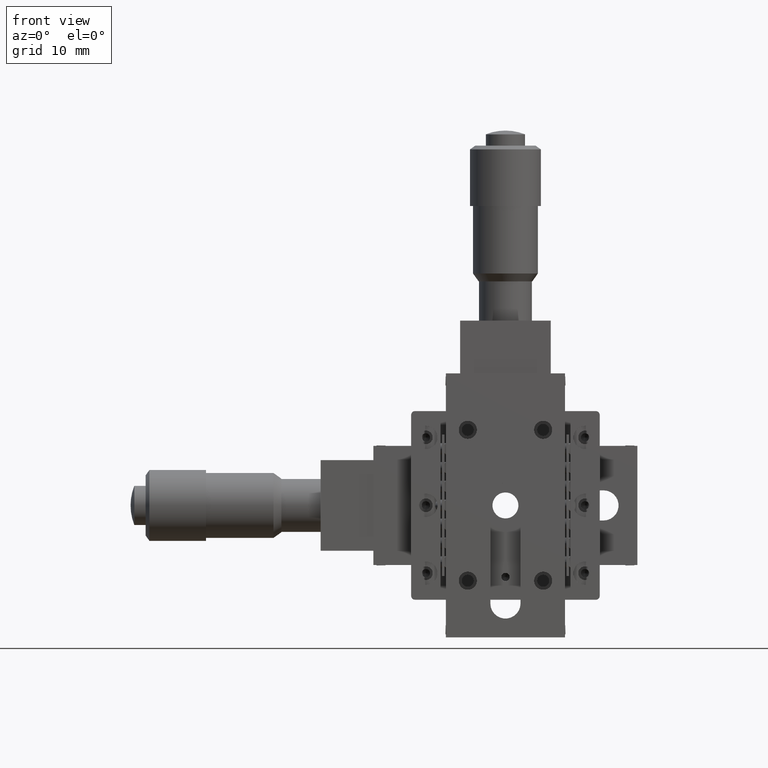
[diagram: clean part render]
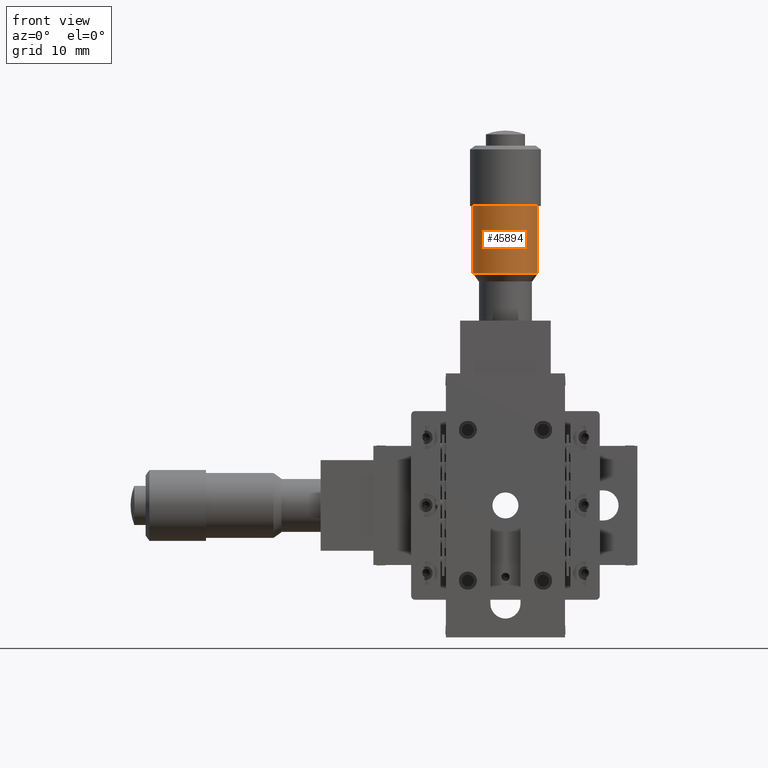
[diagram: same view with one face highlighted and labeled with its STEP entity id]
A machine part, front view. The second image highlights one B-rep face of the part: STEP entity #45894.
In plain terms, the highlighted cylindrical surface (edge-blend (fillet) strip) has radius 4.3 mm, axis along (0, 0, 1).
Its self-contained STEP definition (entity closure, byte-faithful):
#747 = CARTESIAN_POINT ( 'NONE',  ( 3.137747072165624400E-014, 6.199999999999917600, 83.73849299920763700 ) ) ;
#1288 = CARTESIAN_POINT ( 'NONE',  ( -4.299330265894087500, 6.275930369695276800, 36.34243226950731300 ) ) ;
#1525 = CARTESIAN_POINT ( 'NONE',  ( -4.298724953313792300, 6.304987535272838200, 36.53535278307617100 ) ) ;
#1660 = DIRECTION ( 'NONE',  ( 1.110223024626044000E-016, 1.762506864451433100E-016, 1.000000000000000000 ) ) ;
#2307 = EDGE_CURVE ( 'NONE', #20906, #18374, #33225, .T. ) ;
#2344 = DIRECTION ( 'NONE',  ( 0.9995725314435851500, -0.02923618277858836300, 0.0000000000000000000 ) ) ;
#3737 = VECTOR ( 'NONE', #34727, 1000.000000000000000 ) ;
#5403 = FACE_OUTER_BOUND ( 'NONE', #37456, .T. ) ;
#5784 = CARTESIAN_POINT ( 'NONE',  ( 4.296902805728514400, 6.036824394829378300, 37.23787676788948900 ) ) ;
#6308 = CARTESIAN_POINT ( 'NONE',  ( -4.299194531600719800, 6.283372684705188500, 36.40825967323661400 ) ) ;
#6877 = ORIENTED_EDGE ( 'NONE', *, *, #48872, .T. ) ;
#7495 = CARTESIAN_POINT ( 'NONE',  ( -4.299421812216580800, 6.270537722050214300, 35.93747706129513400 ) ) ;
#7845 = CARTESIAN_POINT ( 'NONE',  ( 4.298161885207447200, 6.074284414051967400, 30.74746992999999400 ) ) ;
#8504 = DIRECTION ( 'NONE',  ( 1.110223024626044000E-016, 1.762506864451433100E-016, 1.000000000000000000 ) ) ;
#8541 = VECTOR ( 'NONE', #1660, 1000.000000000000000 ) ;
#9214 = ORIENTED_EDGE ( 'NONE', *, *, #27364, .T. ) ;
#9296 = CARTESIAN_POINT ( 'NONE',  ( 2.582153340302520800E-014, 6.199999999999897100, 37.14221612708995900 ) ) ;
#12314 = VERTEX_POINT ( 'NONE', #31779 ) ;
#12860 = ORIENTED_EDGE ( 'NONE', *, *, #33312, .F. ) ;
#12963 = CARTESIAN_POINT ( 'NONE',  ( -4.299489326010757400, 6.266301581300815800, 36.00756061587681200 ) ) ;
#13189 = CARTESIAN_POINT ( 'NONE',  ( -4.299518700135160500, 6.264334649978661000, 36.10190665839508000 ) ) ;
#13553 = CARTESIAN_POINT ( 'NONE',  ( -4.298161885207391300, 6.325715585947847300, 83.73849299920763700 ) ) ;
#13783 = CARTESIAN_POINT ( 'NONE',  ( 2.510937632186323100E-014, 6.199999999999897100, 30.74746992999999400 ) ) ;
#13996 = CARTESIAN_POINT ( 'NONE',  ( -4.298161888975662300, 6.325715532416903200, 36.62222717098814700 ) ) ;
#14259 = EDGE_CURVE ( 'NONE', #40290, #19586, #35475, .T. ) ;
#14451 = LINE ( 'NONE', #60159, #21238 ) ;
#14873 = CARTESIAN_POINT ( 'NONE',  ( 2.596848604361885800E-014, 6.199999999999898900, 39.69746992999999000 ) ) ;
#16680 = DIRECTION ( 'NONE',  ( 0.9995725314435851500, -0.02923618277858836300, 0.0000000000000000000 ) ) ;
#16810 = CARTESIAN_POINT ( 'NONE',  ( 4.298161885207448100, 6.074284414051969200, 39.69746992999999000 ) ) ;
#18149 = CARTESIAN_POINT ( 'NONE',  ( -4.299371041534885600, 6.273556249581595500, 36.31743757126597000 ) ) ;
#18190 = AXIS2_PLACEMENT_3D ( 'NONE', #13783, #8504, #2344 ) ;
#18374 = VERTEX_POINT ( 'NONE', #7845 ) ;
#19176 = VERTEX_POINT ( 'NONE', #45240 ) ;
#19207 = CARTESIAN_POINT ( 'NONE',  ( 4.298161885207453500, 6.074284414051986900, 83.73849299920763700 ) ) ;
#19357 = EDGE_CURVE ( 'NONE', #67928, #27968, #68145, .T. ) ;
#19586 = VERTEX_POINT ( 'NONE', #16810 ) ;
#19838 = DIRECTION ( 'NONE',  ( 1.110223024626044000E-016, 1.762506864451433100E-016, 1.000000000000000000 ) ) ;
#19909 = LINE ( 'NONE', #67013, #3737 ) ;
#20103 = EDGE_CURVE ( 'NONE', #18374, #12314, #53604, .T. ) ;
#20906 = VERTEX_POINT ( 'NONE', #23833 ) ;
#21019 = DIRECTION ( 'NONE',  ( 1.110223024626044000E-016, 1.762506864451433100E-016, 1.000000000000000000 ) ) ;
#21238 = VECTOR ( 'NONE', #33557, 1000.000000000000000 ) ;
#21303 = LINE ( 'NONE', #13553, #8541 ) ;
#22455 = CARTESIAN_POINT ( 'NONE',  ( -4.298161888975662300, 6.325715532416903200, 36.62222717098814700 ) ) ;
#23181 = CARTESIAN_POINT ( 'NONE',  ( -4.299358902071585200, 6.274273284386503700, 35.89705032987759400 ) ) ;
#23415 = CARTESIAN_POINT ( 'NONE',  ( -4.299320433775017500, 6.276487703568400400, 35.87675521470772100 ) ) ;
#23833 = CARTESIAN_POINT ( 'NONE',  ( -4.298161885207396600, 6.325715585947827800, 30.74746992999999400 ) ) ;
#24778 = AXIS2_PLACEMENT_3D ( 'NONE', #14873, #21019, #70020 ) ;
#25007 = VERTEX_POINT ( 'NONE', #13996 ) ;
#27364 = EDGE_CURVE ( 'NONE', #27968, #19586, #19909, .T. ) ;
#27968 = VERTEX_POINT ( 'NONE', #36289 ) ;
#28425 = CARTESIAN_POINT ( 'NONE',  ( -4.298482493079164100, 6.314754140494750700, 36.58011535403742400 ) ) ;
#29151 = CARTESIAN_POINT ( 'NONE',  ( -4.299084991811114700, 6.289292834810143300, 35.77487089155305700 ) ) ;
#29549 = ORIENTED_EDGE ( 'NONE', *, *, #34138, .F. ) ;
#30119 = CARTESIAN_POINT ( 'NONE',  ( -4.298161885207391300, 6.325715585947847300, 83.73849299920763700 ) ) ;
#31199 = ORIENTED_EDGE ( 'NONE', *, *, #20103, .T. ) ;
#31779 = CARTESIAN_POINT ( 'NONE',  ( 4.298161885207448100, 6.074284414051979800, 37.14221612708995900 ) ) ;
#33047 = ORIENTED_EDGE ( 'NONE', *, *, #57411, .F. ) ;
#33225 = CIRCLE ( 'NONE', #18190, 4.300000000000006000 ) ;
#33312 = EDGE_CURVE ( 'NONE', #20906, #49274, #21303, .T. ) ;
#33557 = DIRECTION ( 'NONE',  ( 5.173820016162133300E-018, 1.793466154370806700E-016, 1.000000000000000000 ) ) ;
#33568 = CYLINDRICAL_SURFACE ( 'NONE', #53419, 4.300000000000006000 ) ;
#34138 = EDGE_CURVE ( 'NONE', #19176, #12314, #67996, .T. ) ;
#34414 = CARTESIAN_POINT ( 'NONE',  ( -4.299439487127691500, 6.269434772037504500, 35.95258026031312000 ) ) ;
#34727 = DIRECTION ( 'NONE',  ( 1.110223024626044000E-016, 1.762506864451433100E-016, 1.000000000000000000 ) ) ;
#35475 = CIRCLE ( 'NONE', #24778, 4.300000000000006000 ) ;
#35683 = DIRECTION ( 'NONE',  ( 1.110223024626044000E-016, 1.762506864451433100E-016, 1.000000000000000000 ) ) ;
#36289 = CARTESIAN_POINT ( 'NONE',  ( 4.298161885207441000, 6.074284414051978900, 37.23787676788948900 ) ) ;
#37146 = DIRECTION ( 'NONE',  ( 1.110223024626044000E-016, 1.762506864451433100E-016, 1.000000000000000000 ) ) ;
#37264 = B_SPLINE_CURVE_WITH_KNOTS ( 'NONE', 3,
 ( #13189, #61711, #12963, #34414, #7495, #23181, #23415, #29151, #62177, #56002 ),
 .UNSPECIFIED., .F., .F.,
 ( 4, 2, 2, 2, 4 ),
 ( 0.0000000000000000000, 0.1829254814170625800, 0.2743882221256111500, 0.3658509628341596900, 0.7317019256683855400 ),
 .UNSPECIFIED. ) ;
#37456 = EDGE_LOOP ( 'NONE', ( #12860, #41305, #31199, #29549, #52632, #55925, #9214, #64313, #33047, #6877, #63755 ) ) ;
#38843 = DIRECTION ( 'NONE',  ( 1.110223024626044000E-016, 1.762506864451433100E-016, 1.000000000000000000 ) ) ;
#38970 = CARTESIAN_POINT ( 'NONE',  ( -4.299071530591044500, 6.289680441941950300, 36.45123226953233300 ) ) ;
#39870 = CARTESIAN_POINT ( 'NONE',  ( -4.299518700135160500, 6.264334649978661000, 36.10190665839508000 ) ) ;
#40290 = VERTEX_POINT ( 'NONE', #63998 ) ;
#41305 = ORIENTED_EDGE ( 'NONE', *, *, #2307, .T. ) ;
#41334 = VERTEX_POINT ( 'NONE', #69640 ) ;
#41400 = EDGE_CURVE ( 'NONE', #19176, #67928, #14451, .T. ) ;
#42351 = CARTESIAN_POINT ( 'NONE',  ( 2.582202833396333500E-014, 6.199999999999897100, 37.23787676788948900 ) ) ;
#45064 = CARTESIAN_POINT ( 'NONE',  ( -4.299475642102383900, 6.267207786158822500, 36.22701718947349300 ) ) ;
#45240 = CARTESIAN_POINT ( 'NONE',  ( 4.296902805728514400, 6.036824394829378300, 37.14221612708995900 ) ) ;
#45894 = ADVANCED_FACE ( 'NONE', ( #5403 ), #33568, .T. ) ;
#46648 = CARTESIAN_POINT ( 'NONE',  ( -4.298161881797286200, 6.325715702572399100, 35.61349922465714700 ) ) ;
#47393 = DIRECTION ( 'NONE',  ( 0.9997107461728599300, -0.02405044670071193900, 0.0000000000000000000 ) ) ;
#48872 = EDGE_CURVE ( 'NONE', #25007, #41334, #62587, .T. ) ;
#49274 = VERTEX_POINT ( 'NONE', #46648 ) ;
#50974 = CARTESIAN_POINT ( 'NONE',  ( -4.299417012248877500, 6.270818284547172700, 36.28325171279390600 ) ) ;
#52632 = ORIENTED_EDGE ( 'NONE', *, *, #41400, .T. ) ;
#53419 = AXIS2_PLACEMENT_3D ( 'NONE', #747, #38843, #16680 ) ;
#53604 = LINE ( 'NONE', #19207, #60481 ) ;
#54771 = AXIS2_PLACEMENT_3D ( 'NONE', #42351, #37146, #58252 ) ;
#55925 = ORIENTED_EDGE ( 'NONE', *, *, #19357, .T. ) ;
#56002 = CARTESIAN_POINT ( 'NONE',  ( -4.298161881797286200, 6.325715702572399100, 35.61349922465714700 ) ) ;
#57411 = EDGE_CURVE ( 'NONE', #25007, #40290, #66868, .T. ) ;
#57479 = AXIS2_PLACEMENT_3D ( 'NONE', #9296, #63311, #47393 ) ;
#58252 = DIRECTION ( 'NONE',  ( 0.9948952906140942100, 0.1009126390195849800, 0.0000000000000000000 ) ) ;
#60159 = CARTESIAN_POINT ( 'NONE',  ( 4.296902805728514400, 6.036824394829378300, 37.14221612708995900 ) ) ;
#60481 = VECTOR ( 'NONE', #35683, 1000.000000000000000 ) ;
#61711 = CARTESIAN_POINT ( 'NONE',  ( -4.299509497574321800, 6.264949661988930000, 36.05122715350817900 ) ) ;
#62177 = CARTESIAN_POINT ( 'NONE',  ( -4.298771640651714200, 6.304868309213713200, 35.69321220332512500 ) ) ;
#62587 = B_SPLINE_CURVE_WITH_KNOTS ( 'NONE', 3,
 ( #22455, #28425, #1525, #38970, #6308, #1288, #18149, #50974, #45064, #67847, #39870 ),
 .UNSPECIFIED., .F., .F.,
 ( 4, 2, 2, 2, 1, 4 ),
 ( 0.3650545863495108800, 0.5237909397621398600, 0.6825272931747687900, 0.7618954698810833600, 0.8412636465873977200, 1.000000000000000000 ),
 .UNSPECIFIED. ) ;
#63311 = DIRECTION ( 'NONE',  ( 1.110223024626044000E-016, 1.762506864451433100E-016, 1.000000000000000000 ) ) ;
#63755 = ORIENTED_EDGE ( 'NONE', *, *, #70515, .T. ) ;
#63998 = CARTESIAN_POINT ( 'NONE',  ( -4.298161885207389500, 6.325715585947838400, 39.69746992999999000 ) ) ;
#64313 = ORIENTED_EDGE ( 'NONE', *, *, #14259, .F. ) ;
#66868 = LINE ( 'NONE', #30119, #68566 ) ;
#67013 = CARTESIAN_POINT ( 'NONE',  ( 4.298161885207453500, 6.074284414051986900, 83.73849299920763700 ) ) ;
#67847 = CARTESIAN_POINT ( 'NONE',  ( -4.299507446936221600, 6.265086707218297400, 36.15591545931626900 ) ) ;
#67928 = VERTEX_POINT ( 'NONE', #5784 ) ;
#67996 = CIRCLE ( 'NONE', #57479, 4.300000000000006000 ) ;
#68145 = CIRCLE ( 'NONE', #54771, 4.300000000000014000 ) ;
#68566 = VECTOR ( 'NONE', #19838, 1000.000000000000000 ) ;
#69640 = CARTESIAN_POINT ( 'NONE',  ( -4.299518700135160500, 6.264334649978661000, 36.10190665839508000 ) ) ;
#70020 = DIRECTION ( 'NONE',  ( 0.9995725314435851500, -0.02923618277858836300, 0.0000000000000000000 ) ) ;
#70515 = EDGE_CURVE ( 'NONE', #41334, #49274, #37264, .T. ) ;